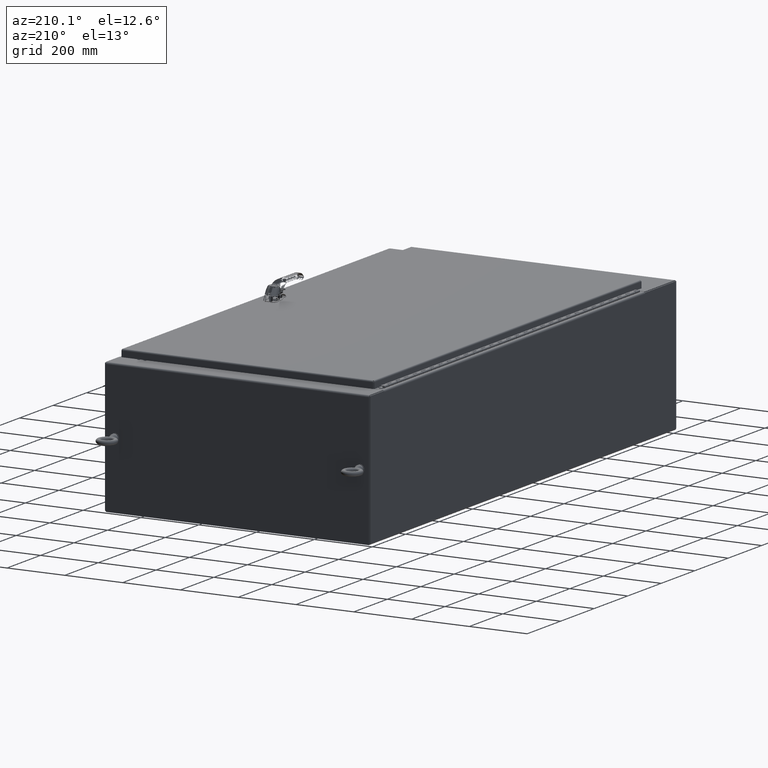
[diagram: clean part render]
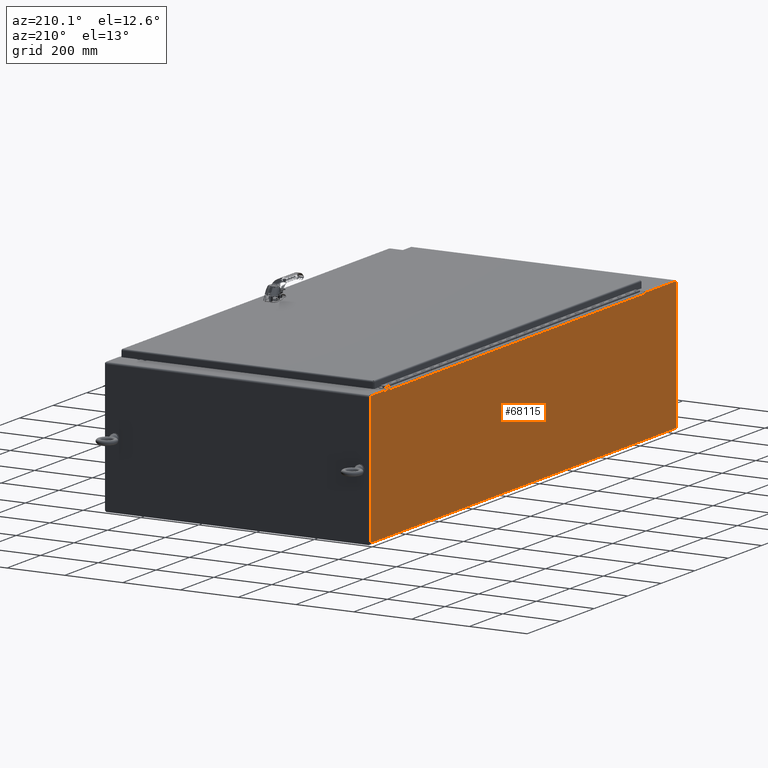
[diagram: same view with one face highlighted and labeled with its STEP entity id]
A machine part, auxiliary view. The second image highlights one B-rep face of the part: STEP entity #68115.
In plain terms, the highlighted planar face has unit normal (1, -0, 0).
Its self-contained STEP definition (entity closure, byte-faithful):
#9216=PLANE('',#71916);
#10384=FACE_OUTER_BOUND('',#13332,.T.);
#13332=EDGE_LOOP('',(#50309,#50310,#50311,#50312,#50313,#50314,#50315,#50316,
#50317,#50318,#50319,#50320));
#20024=LINE('',#96231,#25142);
#20058=LINE('',#96305,#25176);
#20061=LINE('',#96312,#25179);
#20065=LINE('',#96319,#25183);
#20067=LINE('',#96323,#25185);
#20068=LINE('',#96325,#25186);
#20069=LINE('',#96327,#25187);
#20070=LINE('',#96329,#25188);
#20071=LINE('',#96331,#25189);
#20072=LINE('',#96333,#25190);
#20073=LINE('',#96335,#25191);
#20074=LINE('',#96336,#25192);
#25142=VECTOR('',#78367,0.393700787401575);
#25176=VECTOR('',#78435,0.393700787401575);
#25179=VECTOR('',#78440,0.393700787401575);
#25183=VECTOR('',#78446,0.393700787401575);
#25185=VECTOR('',#78450,0.393700787401575);
#25186=VECTOR('',#78451,0.393700787401575);
#25187=VECTOR('',#78452,0.393700787401575);
#25188=VECTOR('',#78453,0.393700787401575);
#25189=VECTOR('',#78454,0.393700787401575);
#25190=VECTOR('',#78455,0.393700787401575);
#25191=VECTOR('',#78456,0.179625000000001);
#25192=VECTOR('',#78457,0.393700787401575);
#30246=VERTEX_POINT('',#96228);
#30247=VERTEX_POINT('',#96230);
#30270=VERTEX_POINT('',#96304);
#30272=VERTEX_POINT('',#96310);
#30273=VERTEX_POINT('',#96311);
#30276=VERTEX_POINT('',#96322);
#30277=VERTEX_POINT('',#96324);
#30278=VERTEX_POINT('',#96326);
#30279=VERTEX_POINT('',#96328);
#30280=VERTEX_POINT('',#96330);
#30281=VERTEX_POINT('',#96332);
#30282=VERTEX_POINT('',#96334);
#39538=EDGE_CURVE('',#30247,#30246,#20024,.T.);
#39575=EDGE_CURVE('',#30270,#30247,#20058,.T.);
#39578=EDGE_CURVE('',#30272,#30273,#20061,.T.);
#39582=EDGE_CURVE('',#30273,#30270,#20065,.T.);
#39584=EDGE_CURVE('',#30246,#30276,#20067,.T.);
#39585=EDGE_CURVE('',#30276,#30277,#20068,.T.);
#39586=EDGE_CURVE('',#30277,#30278,#20069,.T.);
#39587=EDGE_CURVE('',#30279,#30278,#20070,.T.);
#39588=EDGE_CURVE('',#30280,#30279,#20071,.T.);
#39589=EDGE_CURVE('',#30280,#30281,#20072,.T.);
#39590=EDGE_CURVE('',#30282,#30281,#20073,.T.);
#39591=EDGE_CURVE('',#30272,#30282,#20074,.T.);
#50309=ORIENTED_EDGE('',*,*,#39578,.T.);
#50310=ORIENTED_EDGE('',*,*,#39582,.T.);
#50311=ORIENTED_EDGE('',*,*,#39575,.T.);
#50312=ORIENTED_EDGE('',*,*,#39538,.T.);
#50313=ORIENTED_EDGE('',*,*,#39584,.T.);
#50314=ORIENTED_EDGE('',*,*,#39585,.T.);
#50315=ORIENTED_EDGE('',*,*,#39586,.T.);
#50316=ORIENTED_EDGE('',*,*,#39587,.F.);
#50317=ORIENTED_EDGE('',*,*,#39588,.F.);
#50318=ORIENTED_EDGE('',*,*,#39589,.T.);
#50319=ORIENTED_EDGE('',*,*,#39590,.F.);
#50320=ORIENTED_EDGE('',*,*,#39591,.F.);
#68115=ADVANCED_FACE('',(#10384),#9216,.F.);
#71916=AXIS2_PLACEMENT_3D('',#96321,#78448,#78449);
#78367=DIRECTION('',(7.75228586200429E-17,1.,-9.11580397722918E-17));
#78435=DIRECTION('',(-5.41479688132851E-15,0.,1.));
#78440=DIRECTION('',(5.41479688132851E-15,0.,-1.));
#78446=DIRECTION('',(7.75228586200424E-17,1.,0.));
#78448=DIRECTION('center_axis',(1.,-7.75228586200424E-17,5.41479688132851E-15));
#78449=DIRECTION('ref_axis',(5.41479688132851E-15,7.77955795017087E-17,
-1.));
#78450=DIRECTION('',(5.41479688132851E-15,0.,-1.));
#78451=DIRECTION('',(7.75228586200424E-17,1.,0.));
#78452=DIRECTION('',(-5.41479688132851E-15,0.,1.));
#78453=DIRECTION('',(-7.77955795017095E-17,-1.,7.77955795017091E-17));
#78454=DIRECTION('',(-5.39030285815812E-15,4.19082355898663E-31,1.));
#78455=DIRECTION('',(-7.75228586200424E-17,-1.,1.47004814792715E-33));
#78456=DIRECTION('',(5.32907051820075E-15,-7.77955795017095E-17,-1.));
#78457=DIRECTION('',(-7.77955795017095E-17,-1.,7.77955795017091E-17));
#96228=CARTESIAN_POINT('',(-18.0625000000001,32.6875,17.880375));
#96230=CARTESIAN_POINT('',(-18.0625000000001,-28.6875,17.880375));
#96231=CARTESIAN_POINT('',(-18.0625000000001,-14.34375,17.880375));
#96304=CARTESIAN_POINT('',(-18.0625000000001,-28.6875,17.880175));
#96305=CARTESIAN_POINT('',(-18.0625000000001,-28.6875,13.4359551774499));
#96310=CARTESIAN_POINT('',(-18.0625000000001,-28.6877,18.021));
#96311=CARTESIAN_POINT('',(-18.0625000000001,-28.6877,17.880175));
#96312=CARTESIAN_POINT('',(-18.0625000000001,-28.6877,13.5063676774499));
#96319=CARTESIAN_POINT('',(-18.0625000000001,-14.34385,17.880175));
#96321=CARTESIAN_POINT('Origin',(-18.0625,2.11400621360795E-15,8.99173535489973));
#96322=CARTESIAN_POINT('',(-18.0625000000001,32.6875,17.880175));
#96323=CARTESIAN_POINT('',(-18.0625000000001,32.6875,13.5063676774499));
#96324=CARTESIAN_POINT('',(-18.0625000000001,32.6877,17.880175));
#96325=CARTESIAN_POINT('',(-18.0625000000001,16.34375,17.880175));
#96326=CARTESIAN_POINT('',(-18.0625000000001,32.6877,18.021));
#96327=CARTESIAN_POINT('',(-18.0625000000001,32.6877,13.4359551774499));
#96328=CARTESIAN_POINT('',(-18.0625000000001,35.9585,18.021));
#96329=CARTESIAN_POINT('',(-18.0625000000001,35.9585,18.021));
#96330=CARTESIAN_POINT('',(-18.0625,35.9585,0.244625));
#96331=CARTESIAN_POINT('',(-18.0625,35.9585,0.244624999999994));
#96332=CARTESIAN_POINT('',(-18.0625,-35.9585,0.244625));
#96333=CARTESIAN_POINT('',(-18.0625,1.06650961519312E-15,0.244625000000002));
#96334=CARTESIAN_POINT('',(-18.0625000000001,-35.9585,18.021));
#96335=CARTESIAN_POINT('',(-18.0625,-35.9585,-0.319683580401069));
#96336=CARTESIAN_POINT('',(-18.0625000000001,35.9585,18.021));